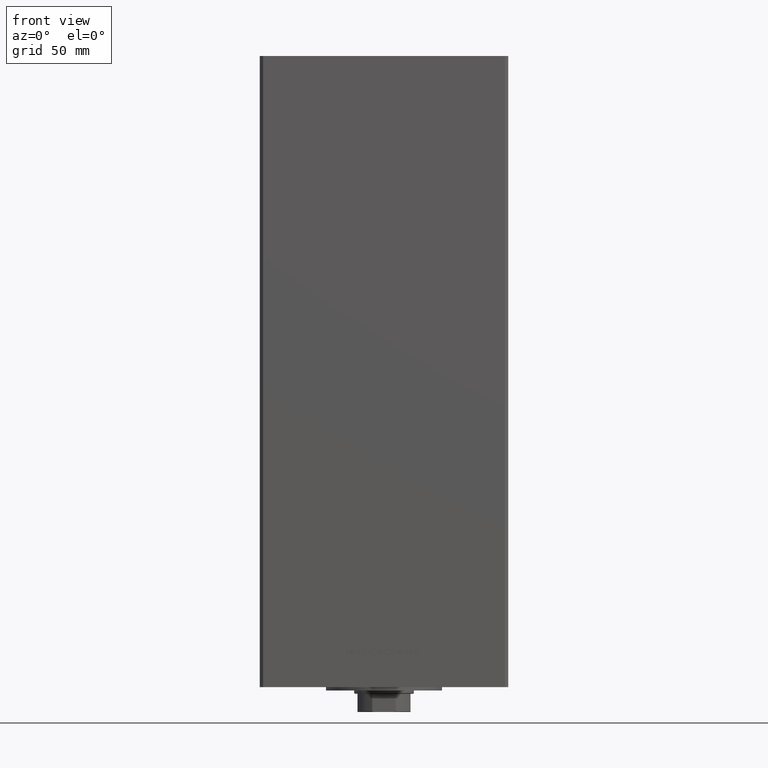
[diagram: clean part render]
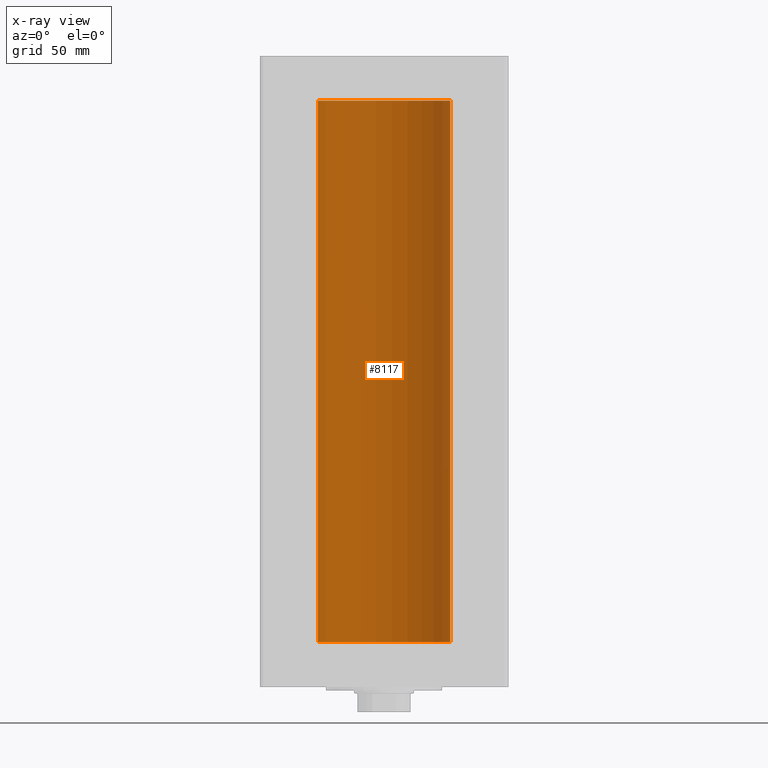
[diagram: x-ray — body ghosted, one internal face saturated and labeled with its STEP entity id]
A machine part, front view, then the same camera in x-ray: the body is ghosted and one INTERNAL B-rep face — a face not visible from any outside direction — is saturated and labeled: STEP entity #8117.
In plain terms, the highlighted cylindrical surface (partial cylindrical patch) has radius 40 mm, axis along (-0, -0, -1).
Its self-contained STEP definition (entity closure, byte-faithful):
#2209 = EDGE_CURVE ( 'NONE', #32931, #47929, #33760, .T. ) ;
#4785 = CARTESIAN_POINT ( 'NONE',  ( 0.000000000000000000, 0.000000000000000000, 327.0000000000000000 ) ) ;
#8117 = ADVANCED_FACE ( 'NONE', ( #27784 ), #38508, .F. ) ;
#10092 = EDGE_CURVE ( 'NONE', #24544, #32931, #30129, .T. ) ;
#11785 = DIRECTION ( 'NONE',  ( -1.000000000000000000, 0.000000000000000000, 0.000000000000000000 ) ) ;
#12037 = DIRECTION ( 'NONE',  ( -0.000000000000000000, -0.000000000000000000, -1.000000000000000000 ) ) ;
#12705 = CARTESIAN_POINT ( 'NONE',  ( 40.00000000000000000, 4.898587196589413026E-15, 327.0000000000000000 ) ) ;
#14794 = CARTESIAN_POINT ( 'NONE',  ( 40.00000000000000000, 4.898587196589413026E-15, 327.0000000000000000 ) ) ;
#14993 = DIRECTION ( 'NONE',  ( 1.000000000000000000, 0.000000000000000000, 0.000000000000000000 ) ) ;
#15402 = ORIENTED_EDGE ( 'NONE', *, *, #10092, .T. ) ;
#18041 = CARTESIAN_POINT ( 'NONE',  ( -40.00000000000000000, 0.000000000000000000, 327.0000000000000000 ) ) ;
#18254 = DIRECTION ( 'NONE',  ( -0.000000000000000000, 0.000000000000000000, 1.000000000000000000 ) ) ;
#19481 = ORIENTED_EDGE ( 'NONE', *, *, #21385, .F. ) ;
#21223 = VECTOR ( 'NONE', #37252, 1000.000000000000000 ) ;
#21385 = EDGE_CURVE ( 'NONE', #25020, #47929, #26381, .T. ) ;
#22638 = EDGE_LOOP ( 'NONE', ( #35505, #15402, #23065, #19481 ) ) ;
#23065 = ORIENTED_EDGE ( 'NONE', *, *, #2209, .T. ) ;
#24544 = VERTEX_POINT ( 'NONE', #14794 ) ;
#25020 = VERTEX_POINT ( 'NONE', #32376 ) ;
#26381 = CIRCLE ( 'NONE', #27947, 40.00000000000000000 ) ;
#26971 = LINE ( 'NONE', #12705, #34907 ) ;
#27784 = FACE_OUTER_BOUND ( 'NONE', #22638, .T. ) ;
#27947 = AXIS2_PLACEMENT_3D ( 'NONE', #48697, #18254, #14993 ) ;
#28420 = DIRECTION ( 'NONE',  ( -0.000000000000000000, 0.000000000000000000, 1.000000000000000000 ) ) ;
#30129 = CIRCLE ( 'NONE', #36493, 40.00000000000000000 ) ;
#31674 = CARTESIAN_POINT ( 'NONE',  ( 0.000000000000000000, 0.000000000000000000, 327.0000000000000000 ) ) ;
#32376 = CARTESIAN_POINT ( 'NONE',  ( 40.00000000000000000, 4.898587196589413026E-15, 0.000000000000000000 ) ) ;
#32450 = AXIS2_PLACEMENT_3D ( 'NONE', #4785, #12037, #11785 ) ;
#32931 = VERTEX_POINT ( 'NONE', #34206 ) ;
#33438 = CARTESIAN_POINT ( 'NONE',  ( -40.00000000000000000, 0.000000000000000000, 0.000000000000000000 ) ) ;
#33760 = LINE ( 'NONE', #18041, #21223 ) ;
#34206 = CARTESIAN_POINT ( 'NONE',  ( -40.00000000000000000, 0.000000000000000000, 327.0000000000000000 ) ) ;
#34907 = VECTOR ( 'NONE', #46907, 1000.000000000000000 ) ;
#35505 = ORIENTED_EDGE ( 'NONE', *, *, #43780, .F. ) ;
#36493 = AXIS2_PLACEMENT_3D ( 'NONE', #31674, #28420, #46630 ) ;
#37252 = DIRECTION ( 'NONE',  ( -0.000000000000000000, -0.000000000000000000, -1.000000000000000000 ) ) ;
#38508 = CYLINDRICAL_SURFACE ( 'NONE', #32450, 40.00000000000000000 ) ;
#43780 = EDGE_CURVE ( 'NONE', #24544, #25020, #26971, .T. ) ;
#46630 = DIRECTION ( 'NONE',  ( 1.000000000000000000, 0.000000000000000000, 0.000000000000000000 ) ) ;
#46907 = DIRECTION ( 'NONE',  ( -0.000000000000000000, -0.000000000000000000, -1.000000000000000000 ) ) ;
#47929 = VERTEX_POINT ( 'NONE', #33438 ) ;
#48697 = CARTESIAN_POINT ( 'NONE',  ( 0.000000000000000000, 0.000000000000000000, 0.000000000000000000 ) ) ;